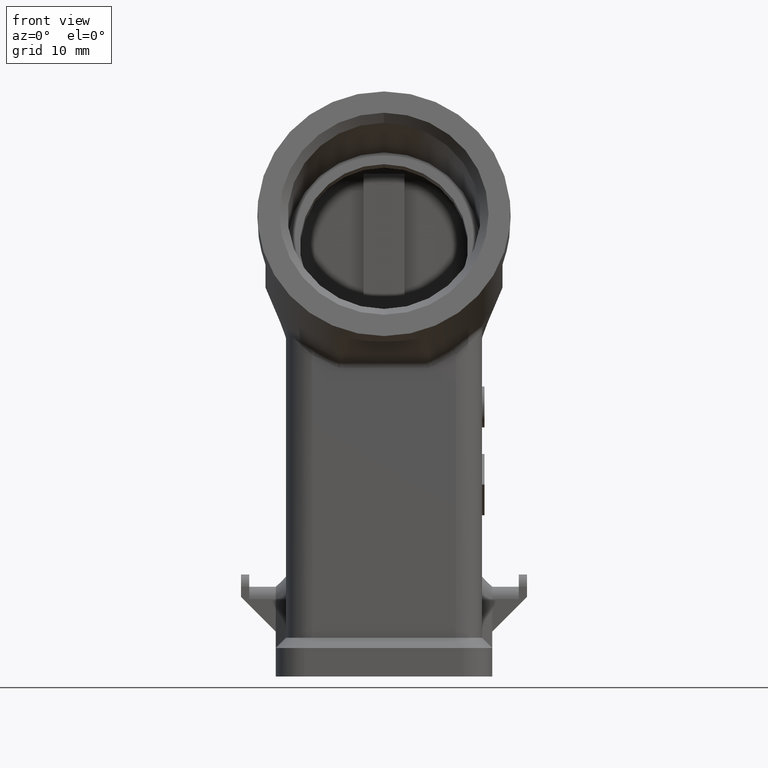
[diagram: clean part render]
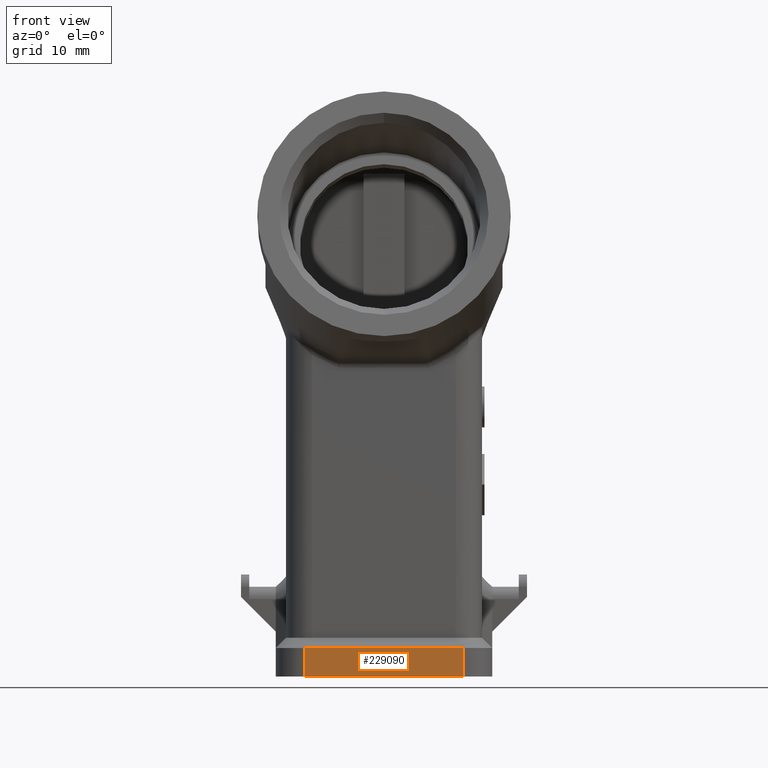
[diagram: same view with one face highlighted and labeled with its STEP entity id]
A machine part, front view. The second image highlights one B-rep face of the part: STEP entity #229090.
In plain terms, the highlighted planar face has unit normal (-0, -1, -0).
Its self-contained STEP definition (entity closure, byte-faithful):
#50600=CARTESIAN_POINT('',(9.75000000000001,18.0356298515438,-3.5));
#50610=VERTEX_POINT('',#50600);
#51030=CARTESIAN_POINT('',(-9.75000000000004,18.0356298515438,-3.5));
#51040=VERTEX_POINT('',#51030);
#51070=CARTESIAN_POINT('',(-13.25,18.0356298515438,-3.5));
#51080=DIRECTION('',(1.,-9.21161854945723E-17,0.));
#51090=VECTOR('',#51080,1.);
#51100=LINE('',#51070,#51090);
#51110=EDGE_CURVE('',#51040,#50610,#51100,.T.);
#53900=CARTESIAN_POINT('',(-9.75000000000004,18.0356298515438,-3.5));
#53910=DIRECTION('',(0.,0.,1.));
#53920=VECTOR('',#53910,1.);
#53930=LINE('',#53900,#53920);
#53940=CARTESIAN_POINT('',(-9.7500000000029,18.0356298515438,
8.43769498715119E-15));
#53950=VERTEX_POINT('',#53940);
#53960=EDGE_CURVE('',#51040,#53950,#53930,.T.);
#56890=CARTESIAN_POINT('',(9.75000000000288,18.0356298515438,
8.43769498715119E-15));
#56900=VERTEX_POINT('',#56890);
#56930=CARTESIAN_POINT('',(-4.67646726563657E-15,18.0356298515438,
8.88178419700125E-16));
#56940=DIRECTION('',(1.,-9.21161854945722E-17,-1.74315279842105E-32));
#56950=VECTOR('',#56940,1.);
#56960=LINE('',#56930,#56950);
#56970=EDGE_CURVE('',#53950,#56900,#56960,.T.);
#160740=CARTESIAN_POINT('',(9.75000000000002,18.0356298515438,-3.5));
#160750=DIRECTION('',(0.,0.,1.));
#160760=VECTOR('',#160750,1.);
#160770=LINE('',#160740,#160760);
#160780=EDGE_CURVE('',#50610,#56900,#160770,.T.);
#228980=CARTESIAN_POINT('',(13.25,18.0356298515438,-3.5));
#228990=DIRECTION('',(-9.21161854945723E-17,-1.,-0.));
#229000=DIRECTION('',(-1.,9.21161854945723E-17,0.));
#229010=AXIS2_PLACEMENT_3D('',#228980,#228990,#229000);
#229020=PLANE('',#229010);
#229030=ORIENTED_EDGE('',*,*,#56970,.F.);
#229040=ORIENTED_EDGE('',*,*,#160780,.T.);
#229050=ORIENTED_EDGE('',*,*,#51110,.T.);
#229060=ORIENTED_EDGE('',*,*,#53960,.F.);
#229070=EDGE_LOOP('',(#229060,#229050,#229040,#229030));
#229080=FACE_OUTER_BOUND('',#229070,.T.);
#229090=ADVANCED_FACE('',(#229080),#229020,.T.);